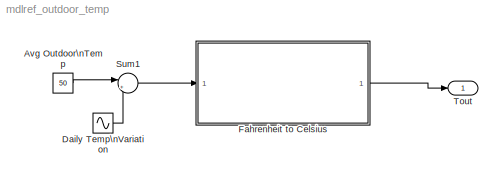
MODEL mdlref_outdoor_temp
KIND model
BLOCK [Constant] Avg Outdoor\nTemp
  Value = 50
BLOCK [Sin] Daily Temp\nVariation
  Amplitude = 15
  Frequency = 2*pi/(24*3600)
  Ports = [0, 1]
  SampleTime = 0
  SineType = Time based
BLOCK [ModelReference] Fahrenheit to Celsius
  CopyOfModelName = mdlref_F2C
  DefaultDataLogging = off
  ModelName = mdlref_F2C
  ModelReferenceVersion = 1.8
  Ports = [1, 1]
BLOCK [Sum] Sum1
  IconShape = round
  Inputs = |++
  Ports = [2, 1]
BLOCK [Outport] Tout
  BusOutputAsStruct = off
  IconDisplay = Port number
LINE Avg Outdoor\nTemp:1 -> Sum1:1
LINE Daily Temp\nVariation:1 -> Sum1:2
LINE Fahrenheit to Celsius:1 -> Tout:1
LINE Sum1:1 -> Fahrenheit to Celsius:1
